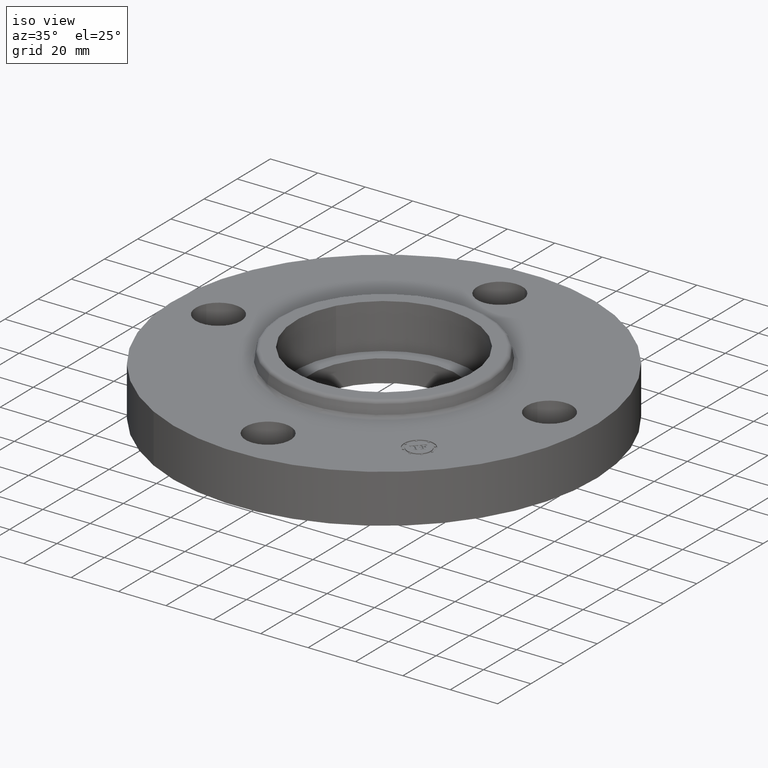
[diagram: clean part render]
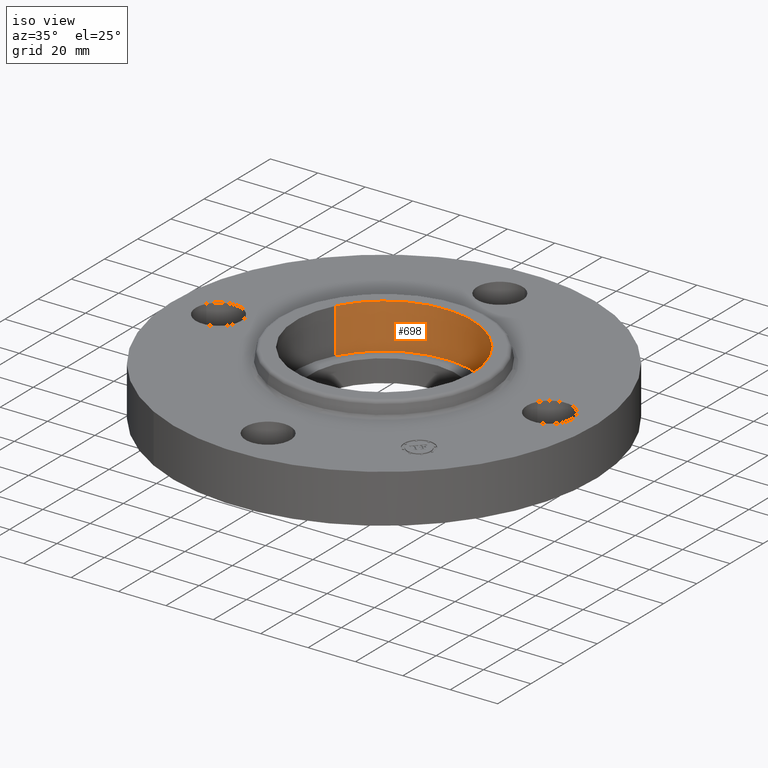
[diagram: same view with one face highlighted and labeled with its STEP entity id]
A machine part, iso view. The second image highlights one B-rep face of the part: STEP entity #698.
In plain terms, the highlighted cylindrical surface (partial cylindrical patch) has radius 37.338 mm, axis along (0, 0, -1).
Its self-contained STEP definition (entity closure, byte-faithful):
#42=AXIS2_PLACEMENT_3D('Circle Axis2P3D',#40,#41,$) ;
#488=AXIS2_PLACEMENT_3D('Circle Axis2P3D',#486,#487,$) ;
#680=AXIS2_PLACEMENT_3D('Cylinder Axis2P3D',#677,#678,#679) ;
#40=CARTESIAN_POINT('Axis2P3D Location',(1.39870617276E-016,1.04902962957E-016,0.310000000001)) ;
#44=CARTESIAN_POINT('Vertex',(-1.29004636598,0.704755541751,0.310000000001)) ;
#46=CARTESIAN_POINT('Vertex',(1.29004636598,-0.704755541751,0.310000000001)) ;
#486=CARTESIAN_POINT('Axis2P3D Location',(2.44773580232E-016,-2.79741234551E-016,1.06)) ;
#490=CARTESIAN_POINT('Vertex',(-1.29004636598,0.704755541751,1.06)) ;
#492=CARTESIAN_POINT('Vertex',(1.29004636598,-0.704755541751,1.06)) ;
#677=CARTESIAN_POINT('Axis2P3D Location',(1.39870617276E-016,1.04902962957E-016,1.05606299213)) ;
#682=CARTESIAN_POINT('Line Origine',(-1.29004636598,0.704755541751,0.685000000003)) ;
#687=CARTESIAN_POINT('Line Origine',(1.29004636598,-0.704755541751,0.685000000003)) ;
#41=DIRECTION('Axis2P3D Direction',(0.,0.,-0.0393700787402)) ;
#487=DIRECTION('Axis2P3D Direction',(0.,0.,-0.0393700787402)) ;
#678=DIRECTION('Axis2P3D Direction',(0.,0.,-0.0393700787402)) ;
#679=DIRECTION('Axis2P3D XDirection',(0.0345504945626,-0.0188750212049,0.)) ;
#683=DIRECTION('Vector Direction',(0.,0.,-0.0393700787402)) ;
#688=DIRECTION('Vector Direction',(0.,0.,-0.0393700787402)) ;
#684=VECTOR('Line Direction',#683,0.0393700787402) ;
#689=VECTOR('Line Direction',#688,0.0393700787402) ;
#693=ORIENTED_EDGE('',*,*,#494,.F.) ;
#694=ORIENTED_EDGE('',*,*,#686,.F.) ;
#695=ORIENTED_EDGE('',*,*,#48,.T.) ;
#696=ORIENTED_EDGE('',*,*,#691,.T.) ;
#698=ADVANCED_FACE('PartBody',(#697),#681,.F.) ;
#43=CIRCLE('generated circle',#42,1.47000000001) ;
#489=CIRCLE('generated circle',#488,1.47000000001) ;
#681=CYLINDRICAL_SURFACE('generated cylinder',#680,1.47000000001) ;
#48=EDGE_CURVE('',#45,#47,#43,.T.) ;
#494=EDGE_CURVE('',#491,#493,#489,.T.) ;
#686=EDGE_CURVE('',#45,#491,#685,.F.) ;
#691=EDGE_CURVE('',#47,#493,#690,.F.) ;
#692=EDGE_LOOP('',(#693,#694,#695,#696)) ;
#697=FACE_OUTER_BOUND('',#692,.T.) ;
#685=LINE('Line',#682,#684) ;
#690=LINE('Line',#687,#689) ;
#45=VERTEX_POINT('',#44) ;
#47=VERTEX_POINT('',#46) ;
#491=VERTEX_POINT('',#490) ;
#493=VERTEX_POINT('',#492) ;